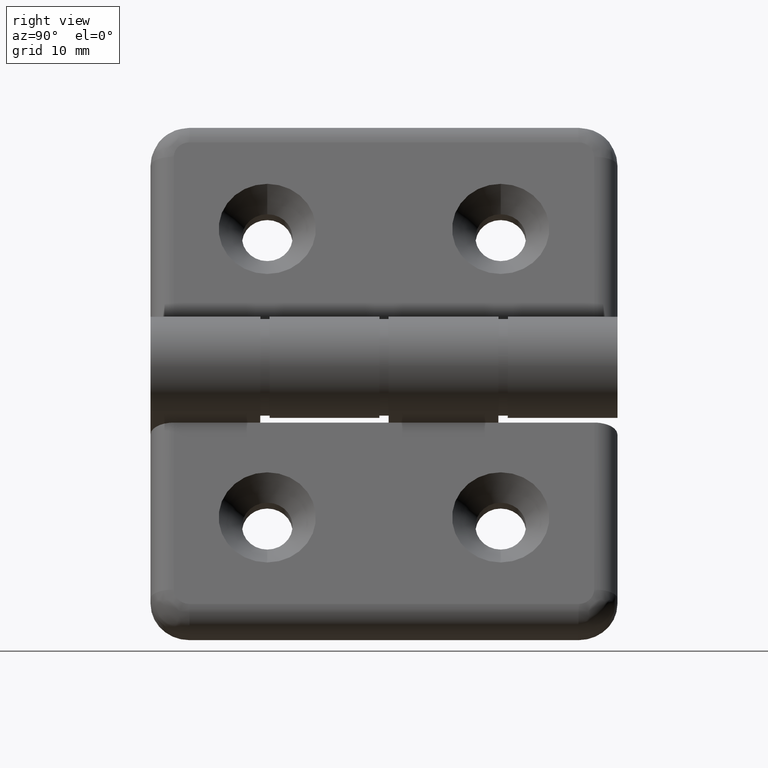
[diagram: clean part render]
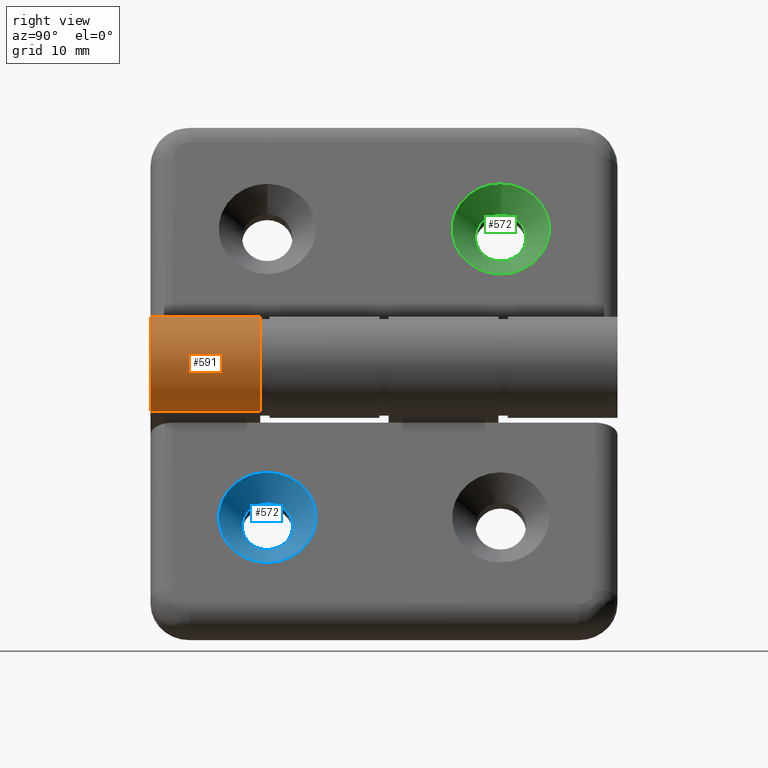
[diagram: same view with three faces highlighted in distinct colors, each labeled with its STEP entity id]
A machine part, right view with three faces highlighted in distinct colors.
Their STEP definitions:

[orange] entity #591 — the highlighted cylindrical surface (partial cylindrical patch) has radius 6.5 mm, axis along (-0, 1, 0).
#98=LINE('',#1007,#135);
#99=LINE('',#1011,#136);
#135=VECTOR('',#797,14.1);
#136=VECTOR('',#802,14.1);
#152=CYLINDRICAL_SURFACE('',#651,6.5);
#198=FACE_OUTER_BOUND('',#245,.T.);
#245=EDGE_LOOP('',(#517,#518,#519,#520));
#290=CIRCLE('',#644,6.5);
#293=CIRCLE('',#652,6.5);
#337=VERTEX_POINT('',#989);
#338=VERTEX_POINT('',#991);
#341=VERTEX_POINT('',#1005);
#342=VERTEX_POINT('',#1009);
#398=EDGE_CURVE('',#338,#337,#290,.T.);
#406=EDGE_CURVE('',#337,#341,#98,.T.);
#407=EDGE_CURVE('',#341,#342,#293,.T.);
#408=EDGE_CURVE('',#338,#342,#99,.T.);
#517=ORIENTED_EDGE('',*,*,#407,.T.);
#518=ORIENTED_EDGE('',*,*,#408,.F.);
#519=ORIENTED_EDGE('',*,*,#398,.T.);
#520=ORIENTED_EDGE('',*,*,#406,.T.);
#591=ADVANCED_FACE('',(#198),#152,.T.);
#644=AXIS2_PLACEMENT_3D('',#992,#778,#779);
#651=AXIS2_PLACEMENT_3D('',#1008,#798,#799);
#652=AXIS2_PLACEMENT_3D('',#1010,#800,#801);
#778=DIRECTION('center_axis',(0.,1.,0.));
#779=DIRECTION('ref_axis',(0.,0.,-1.));
#797=DIRECTION('',(0.,1.,0.));
#798=DIRECTION('center_axis',(0.,1.,0.));
#799=DIRECTION('ref_axis',(0.,0.,-1.));
#800=DIRECTION('center_axis',(-1.38777878078145E-16,-1.,1.02716263700653E-32));
#801=DIRECTION('ref_axis',(0.,0.,-1.));
#802=DIRECTION('',(0.,1.,0.));
#989=CARTESIAN_POINT('',(-1.06598984771574,0.,7.92385786802031));
#991=CARTESIAN_POINT('',(-7.5,0.,0.500000000000001));
#992=CARTESIAN_POINT('Origin',(-7.5,0.,7.));
#1005=CARTESIAN_POINT('',(-1.06598984771574,14.1,7.92385786802031));
#1007=CARTESIAN_POINT('',(-1.06598984771574,0.,7.92385786802031));
#1008=CARTESIAN_POINT('Origin',(-7.5,0.,7.));
#1009=CARTESIAN_POINT('',(-7.5,14.1,0.5));
#1010=CARTESIAN_POINT('Origin',(-7.5,14.1,7.));
#1011=CARTESIAN_POINT('',(-7.5,0.,0.500000000000001));

[blue] entity #572 — the highlighted conical surface has half-angle 45 deg.
#158=FACE_BOUND('',#217,.T.);
#179=FACE_OUTER_BOUND('',#216,.T.);
#216=EDGE_LOOP('',(#428));
#217=EDGE_LOOP('',(#429));
#274=CIRCLE('',#614,6.25);
#275=CIRCLE('',#615,3.25);
#306=VERTEX_POINT('',#888);
#307=VERTEX_POINT('',#890);
#357=EDGE_CURVE('',#306,#306,#274,.T.);
#358=EDGE_CURVE('',#307,#307,#275,.T.);
#428=ORIENTED_EDGE('',*,*,#357,.F.);
#429=ORIENTED_EDGE('',*,*,#358,.F.);
#570=CONICAL_SURFACE('',#613,4.75,45.);
#572=ADVANCED_FACE('',(#179,#158),#570,.F.);
#613=AXIS2_PLACEMENT_3D('',#887,#693,#694);
#614=AXIS2_PLACEMENT_3D('',#889,#695,#696);
#615=AXIS2_PLACEMENT_3D('',#891,#697,#698);
#693=DIRECTION('center_axis',(0.,-1.38777878078145E-16,1.));
#694=DIRECTION('ref_axis',(1.,1.08845394571094E-16,1.51053328971548E-32));
#695=DIRECTION('center_axis',(0.,1.38777878078145E-16,-1.));
#696=DIRECTION('ref_axis',(1.,1.08845394571094E-16,1.51053328971548E-32));
#697=DIRECTION('center_axis',(0.,-1.38777878078145E-16,1.));
#698=DIRECTION('ref_axis',(1.,1.08845394571094E-16,1.51053328971548E-32));
#887=CARTESIAN_POINT('Origin',(12.5,15.,3.49999999999999));
#888=CARTESIAN_POINT('',(18.75,15.,4.99999999999999));
#889=CARTESIAN_POINT('Origin',(12.5,15.,4.99999999999999));
#890=CARTESIAN_POINT('',(15.75,15.,1.99999999999999));
#891=CARTESIAN_POINT('Origin',(12.5,15.,2.));

[green] entity #572 — the highlighted conical surface has half-angle 45 deg.
#158=FACE_BOUND('',#217,.T.);
#179=FACE_OUTER_BOUND('',#216,.T.);
#216=EDGE_LOOP('',(#428));
#217=EDGE_LOOP('',(#429));
#274=CIRCLE('',#614,6.25);
#275=CIRCLE('',#615,3.25);
#306=VERTEX_POINT('',#888);
#307=VERTEX_POINT('',#890);
#357=EDGE_CURVE('',#306,#306,#274,.T.);
#358=EDGE_CURVE('',#307,#307,#275,.T.);
#428=ORIENTED_EDGE('',*,*,#357,.F.);
#429=ORIENTED_EDGE('',*,*,#358,.F.);
#570=CONICAL_SURFACE('',#613,4.75,45.);
#572=ADVANCED_FACE('',(#179,#158),#570,.F.);
#613=AXIS2_PLACEMENT_3D('',#887,#693,#694);
#614=AXIS2_PLACEMENT_3D('',#889,#695,#696);
#615=AXIS2_PLACEMENT_3D('',#891,#697,#698);
#693=DIRECTION('center_axis',(0.,-1.38777878078145E-16,1.));
#694=DIRECTION('ref_axis',(1.,1.08845394571094E-16,1.51053328971548E-32));
#695=DIRECTION('center_axis',(0.,1.38777878078145E-16,-1.));
#696=DIRECTION('ref_axis',(1.,1.08845394571094E-16,1.51053328971548E-32));
#697=DIRECTION('center_axis',(0.,-1.38777878078145E-16,1.));
#698=DIRECTION('ref_axis',(1.,1.08845394571094E-16,1.51053328971548E-32));
#887=CARTESIAN_POINT('Origin',(12.5,15.,3.49999999999999));
#888=CARTESIAN_POINT('',(18.75,15.,4.99999999999999));
#889=CARTESIAN_POINT('Origin',(12.5,15.,4.99999999999999));
#890=CARTESIAN_POINT('',(15.75,15.,1.99999999999999));
#891=CARTESIAN_POINT('Origin',(12.5,15.,2.));